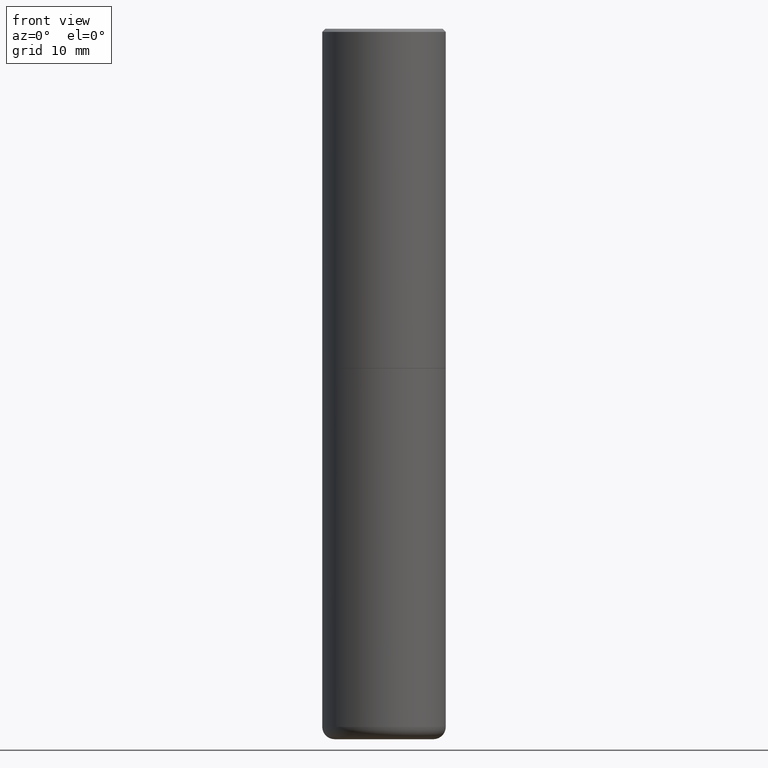
[diagram: clean part render]
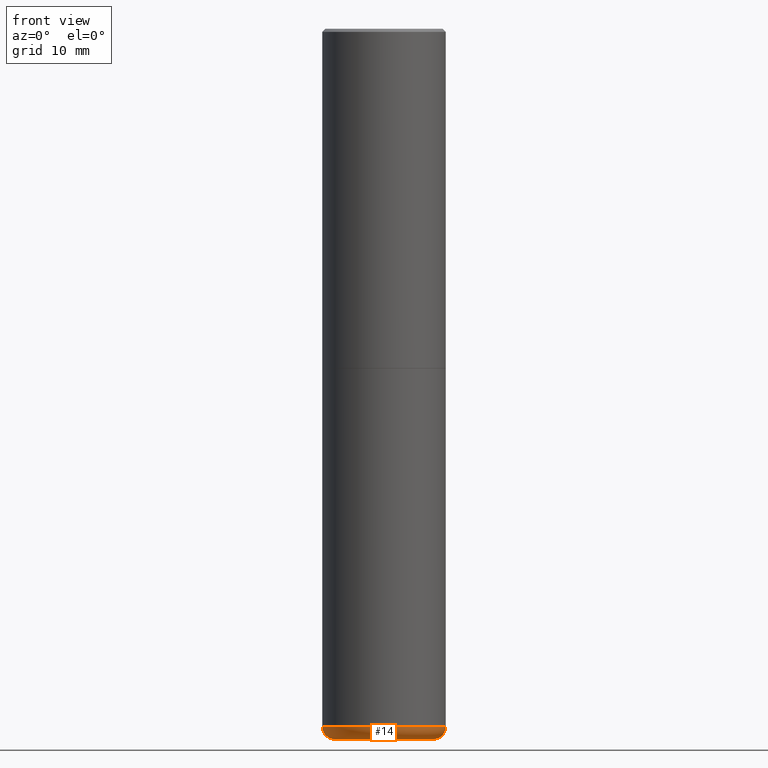
[diagram: same view with one face highlighted and labeled with its STEP entity id]
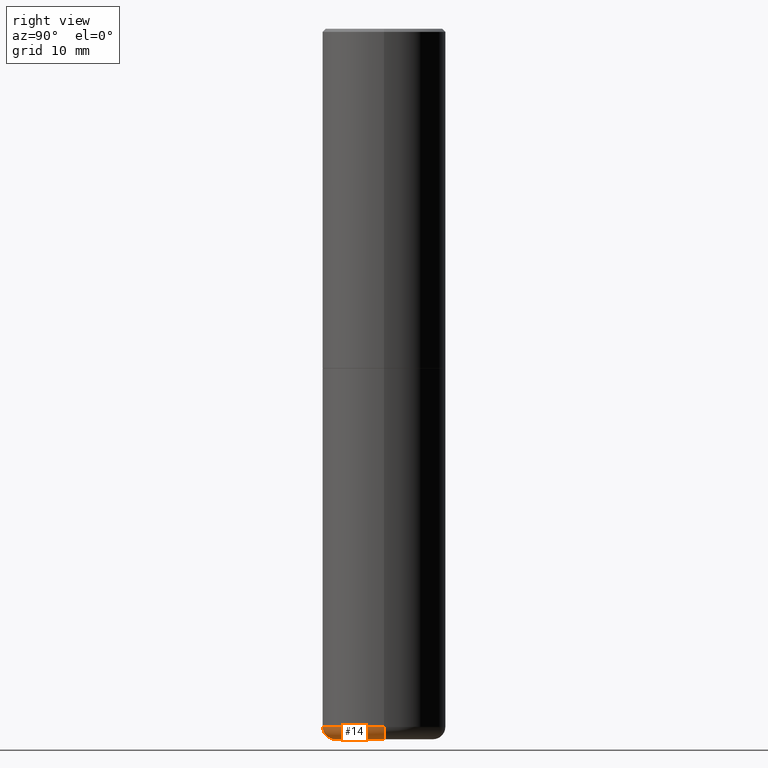
[diagram: same view with one face highlighted and labeled with its STEP entity id]
A machine part, front view. The second image highlights one B-rep face of the part: STEP entity #14.
A second angle (right view) of the same face is appended — the face is thin or edge-on in the first view.
In plain terms, the highlighted toroidal blend (fillet) surface has major radius 8.001 mm and minor (blend) radius 1.999 mm.
Its self-contained STEP definition (entity closure, byte-faithful):
#2 = ORIENTED_EDGE ( 'NONE', *, *, #122, .F. ) ;
#14 = ADVANCED_FACE ( 'NONE', ( #411 ), #213, .T. ) ;
#26 = DIRECTION ( 'NONE',  ( 1.000000000000000000, -6.982962677686273810E-15, 0.000000000000000000 ) ) ;
#27 = EDGE_CURVE ( 'NONE', #280, #110, #171, .T. ) ;
#47 = CARTESIAN_POINT ( 'NONE',  ( 0.3150000000000000577, -1.773288457185044394E-14, -4.448900000000000077 ) ) ;
#50 = CARTESIAN_POINT ( 'NONE',  ( 1.087964617183705369E-28, -1.553325132837927055E-14, -4.448900000000000077 ) ) ;
#70 = EDGE_CURVE ( 'NONE', #341, #270, #355, .T. ) ;
#97 = EDGE_CURVE ( 'NONE', #341, #280, #149, .T. ) ;
#102 = DIRECTION ( 'NONE',  ( -2.445468806185136597E-29, 3.491481338843145583E-15, 1.000000000000000000 ) ) ;
#110 = VERTEX_POINT ( 'NONE', #265 ) ;
#122 = EDGE_CURVE ( 'NONE', #270, #110, #314, .T. ) ;
#123 = DIRECTION ( 'NONE',  ( 1.000000000000000000, -6.982962677686273810E-15, 0.000000000000000000 ) ) ;
#128 = CARTESIAN_POINT ( 'NONE',  ( 1.107210456688382522E-28, -1.580803090974622705E-14, -4.527600000000000513 ) ) ;
#134 = CARTESIAN_POINT ( 'NONE',  ( -0.3150000000000000577, -1.329504171073495377E-14, -4.448900000000000077 ) ) ;
#143 = CARTESIAN_POINT ( 'NONE',  ( -0.3150000000000000577, -1.315283293489683104E-14, -4.527600000000000513 ) ) ;
#148 = CARTESIAN_POINT ( 'NONE',  ( -0.3937000000000002164, -1.273584457769175656E-14, -4.448900000000000077 ) ) ;
#149 = CIRCLE ( 'NONE', #391, 0.3150000000000000577 ) ;
#171 = CIRCLE ( 'NONE', #364, 0.07870000000000024198 ) ;
#174 = ORIENTED_EDGE ( 'NONE', *, *, #70, .F. ) ;
#178 = DIRECTION ( 'NONE',  ( -2.445468806185136597E-29, 3.491481338843145583E-15, 1.000000000000000000 ) ) ;
#179 = CARTESIAN_POINT ( 'NONE',  ( 0.3150000000000000577, -1.800766415321740359E-14, -4.527600000000000513 ) ) ;
#182 = AXIS2_PLACEMENT_3D ( 'NONE', #261, #322, #228 ) ;
#213 = TOROIDAL_SURFACE ( 'NONE', #290, 0.3150000000000000577, 0.07870000000000024198 ) ;
#228 = DIRECTION ( 'NONE',  ( 1.000000000000000000, -6.982962677686261977E-15, 0.000000000000000000 ) ) ;
#253 = DIRECTION ( 'NONE',  ( 1.000000000000000000, -6.982962677686268288E-15, 4.883557194083113462E-29 ) ) ;
#261 = CARTESIAN_POINT ( 'NONE',  ( 1.087964617183705369E-28, -1.553325132837927055E-14, -4.448900000000000077 ) ) ;
#265 = CARTESIAN_POINT ( 'NONE',  ( 0.3937000000000002164, -1.828244373458435062E-14, -4.448900000000000077 ) ) ;
#270 = VERTEX_POINT ( 'NONE', #148 ) ;
#280 = VERTEX_POINT ( 'NONE', #179 ) ;
#282 = AXIS2_PLACEMENT_3D ( 'NONE', #134, #417, #320 ) ;
#290 = AXIS2_PLACEMENT_3D ( 'NONE', #50, #178, #253 ) ;
#308 = ORIENTED_EDGE ( 'NONE', *, *, #27, .T. ) ;
#311 = DIRECTION ( 'NONE',  ( -6.982962677686266711E-15, -1.000000000000000000, 3.491481338843145583E-15 ) ) ;
#314 = CIRCLE ( 'NONE', #182, 0.3937000000000001054 ) ;
#316 = ORIENTED_EDGE ( 'NONE', *, *, #97, .T. ) ;
#320 = DIRECTION ( 'NONE',  ( -1.000000000000000000, 7.105427357600995548E-15, 0.000000000000000000 ) ) ;
#322 = DIRECTION ( 'NONE',  ( -2.445468806185136597E-29, 3.491481338843145583E-15, 1.000000000000000000 ) ) ;
#341 = VERTEX_POINT ( 'NONE', #143 ) ;
#355 = CIRCLE ( 'NONE', #282, 0.07870000000000024198 ) ;
#364 = AXIS2_PLACEMENT_3D ( 'NONE', #47, #311, #123 ) ;
#377 = EDGE_LOOP ( 'NONE', ( #174, #316, #308, #2 ) ) ;
#391 = AXIS2_PLACEMENT_3D ( 'NONE', #128, #102, #26 ) ;
#411 = FACE_OUTER_BOUND ( 'NONE', #377, .T. ) ;
#417 = DIRECTION ( 'NONE',  ( 7.105427357601001859E-15, 1.000000000000000000, -3.491481338843145583E-15 ) ) ;